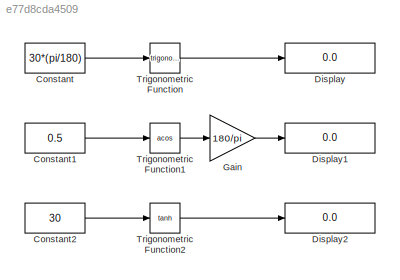
MODEL slx_e77d8cda4509
KIND model
CONFIG AbsTol = auto
CONFIG EnableMultiTasking = off
CONFIG FixedStep = auto
CONFIG MaxStep = auto
CONFIG MinStep = auto
CONFIG RelTol = 1e-3
CONFIG SampleTimeConstraint = Unconstrained
CONFIG Solver = VariableStepAuto
CONFIG SolverName = VariableStepAuto
CONFIG StartTime = 0.0
CONFIG StopTime = 10.0
BLOCK [Constant] Constant
  Value = 30*(pi/180)
BLOCK [Constant] Constant1
  Value = 0.5
BLOCK [Constant] Constant2
  Value = 30
BLOCK [Display] Display
  Decimation = 1
  Ports = [1]
BLOCK [Display] Display1
  Decimation = 1
  Ports = [1]
BLOCK [Display] Display2
  Decimation = 1
  Ports = [1]
BLOCK [Gain] Gain
  Gain = 180/pi
BLOCK [Trigonometry] Trigonometric Function
  Ports = [1, 1]
BLOCK [Trigonometry] Trigonometric Function1
  Operator = acos
  Ports = [1, 1]
BLOCK [Trigonometry] Trigonometric Function2
  Operator = tanh
  Ports = [1, 1]
LINE Constant1:1 -> Trigonometric Function1:1
LINE Constant2:1 -> Trigonometric Function2:1
LINE Constant:1 -> Trigonometric Function:1
LINE Gain:1 -> Display1:1
LINE Trigonometric Function1:1 -> Gain:1
LINE Trigonometric Function2:1 -> Display2:1
LINE Trigonometric Function:1 -> Display:1
